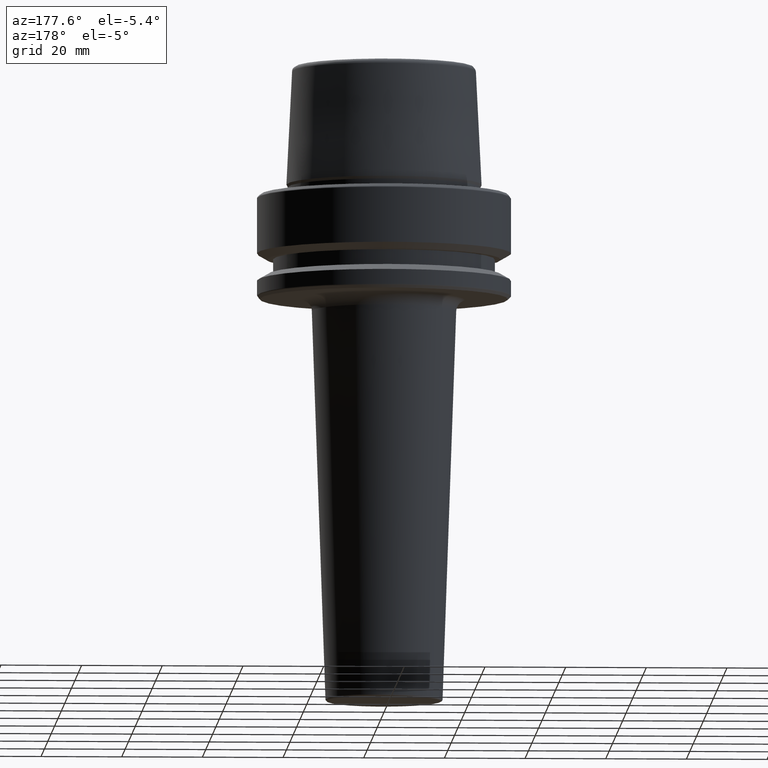
[diagram: clean part render]
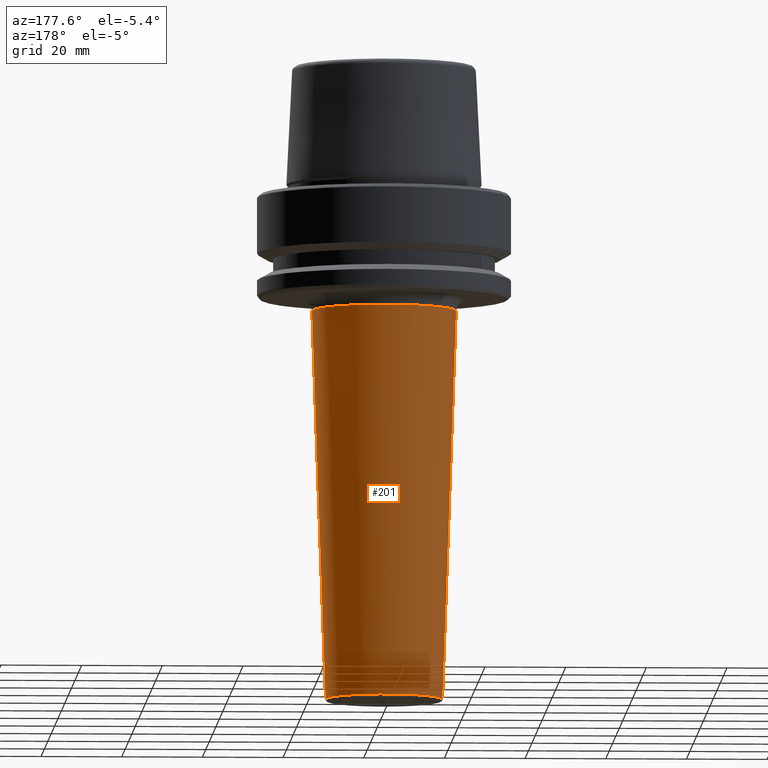
[diagram: same view with one face highlighted and labeled with its STEP entity id]
A machine part, auxiliary view. The second image highlights one B-rep face of the part: STEP entity #201.
In plain terms, the highlighted conical surface has half-angle 2.005 deg.
Its self-contained STEP definition (entity closure, byte-faithful):
#11 = VERTEX_POINT ( 'NONE', #731 ) ;
#61 = CARTESIAN_POINT ( 'NONE',  ( 0.0000000000000000000, 0.0000000000000000000, -28.89506425347315100 ) ) ;
#65 = FACE_OUTER_BOUND ( 'NONE', #383, .T. ) ;
#114 = VECTOR ( 'NONE', #1148, 1000.000000000000000 ) ;
#180 = CARTESIAN_POINT ( 'NONE',  ( 17.99999999999999600, 0.0000000000000000000, -26.00000000000001100 ) ) ;
#189 = ORIENTED_EDGE ( 'NONE', *, *, #928, .T. ) ;
#201 = ADVANCED_FACE ( 'NONE', ( #65 ), #294, .T. ) ;
#222 = ORIENTED_EDGE ( 'NONE', *, *, #444, .T. ) ;
#227 = DIRECTION ( 'NONE',  ( 1.000000000000000000, 0.0000000000000000000, 0.0000000000000000000 ) ) ;
#294 = CONICAL_SURFACE ( 'NONE', #374, 17.99999999999999600, 0.03498571882852565000 ) ;
#315 = LINE ( 'NONE', #180, #1062 ) ;
#322 = CIRCLE ( 'NONE', #946, 14.51688787481193500 ) ;
#374 = AXIS2_PLACEMENT_3D ( 'NONE', #809, #1093, #227 ) ;
#376 = LINE ( 'NONE', #1047, #114 ) ;
#383 = EDGE_LOOP ( 'NONE', ( #222, #189, #1158, #779 ) ) ;
#417 = EDGE_CURVE ( 'NONE', #940, #1204, #728, .T. ) ;
#444 = EDGE_CURVE ( 'NONE', #1166, #11, #322, .T. ) ;
#491 = CARTESIAN_POINT ( 'NONE',  ( 0.0000000000000000000, 0.0000000000000000000, -125.5174892910878000 ) ) ;
#507 = EDGE_CURVE ( 'NONE', #1166, #1204, #315, .T. ) ;
#577 = DIRECTION ( 'NONE',  ( 1.000000000000000000, 0.0000000000000000000, 0.0000000000000000000 ) ) ;
#578 = DIRECTION ( 'NONE',  ( -0.0000000000000000000, -0.0000000000000000000, -1.000000000000000000 ) ) ;
#631 = CARTESIAN_POINT ( 'NONE',  ( 14.51688787481193500, 0.0000000000000000000, -125.5174892910878000 ) ) ;
#728 = CIRCLE ( 'NONE', #815, 17.89867275112843700 ) ;
#731 = CARTESIAN_POINT ( 'NONE',  ( -14.51688787481193700, 1.984880628156242600E-015, -125.5174892910878000 ) ) ;
#774 = CARTESIAN_POINT ( 'NONE',  ( -17.89867275112843400, 2.191955229365538800E-015, -28.89506425347315100 ) ) ;
#779 = ORIENTED_EDGE ( 'NONE', *, *, #507, .F. ) ;
#809 = CARTESIAN_POINT ( 'NONE',  ( 0.0000000000000000000, 0.0000000000000000000, -26.00000000000001100 ) ) ;
#815 = AXIS2_PLACEMENT_3D ( 'NONE', #61, #578, #1052 ) ;
#852 = DIRECTION ( 'NONE',  ( 0.03497858217561852100, 0.0000000000000000000, 0.9993880621605321100 ) ) ;
#928 = EDGE_CURVE ( 'NONE', #11, #940, #376, .T. ) ;
#940 = VERTEX_POINT ( 'NONE', #774 ) ;
#946 = AXIS2_PLACEMENT_3D ( 'NONE', #491, #1149, #577 ) ;
#1003 = CARTESIAN_POINT ( 'NONE',  ( 17.89867275112843400, 0.0000000000000000000, -28.89506425347315100 ) ) ;
#1047 = CARTESIAN_POINT ( 'NONE',  ( -17.99999999999999600, 2.204364238465235000E-015, -26.00000000000001100 ) ) ;
#1052 = DIRECTION ( 'NONE',  ( 1.000000000000000000, 0.0000000000000000000, 0.0000000000000000000 ) ) ;
#1062 = VECTOR ( 'NONE', #852, 1000.000000000000000 ) ;
#1093 = DIRECTION ( 'NONE',  ( 0.0000000000000000000, 0.0000000000000000000, 1.000000000000000000 ) ) ;
#1148 = DIRECTION ( 'NONE',  ( -0.03497858217561852100, 4.283640870008388600E-018, 0.9993880621605321100 ) ) ;
#1149 = DIRECTION ( 'NONE',  ( 0.0000000000000000000, 0.0000000000000000000, 1.000000000000000000 ) ) ;
#1158 = ORIENTED_EDGE ( 'NONE', *, *, #417, .T. ) ;
#1166 = VERTEX_POINT ( 'NONE', #631 ) ;
#1204 = VERTEX_POINT ( 'NONE', #1003 ) ;